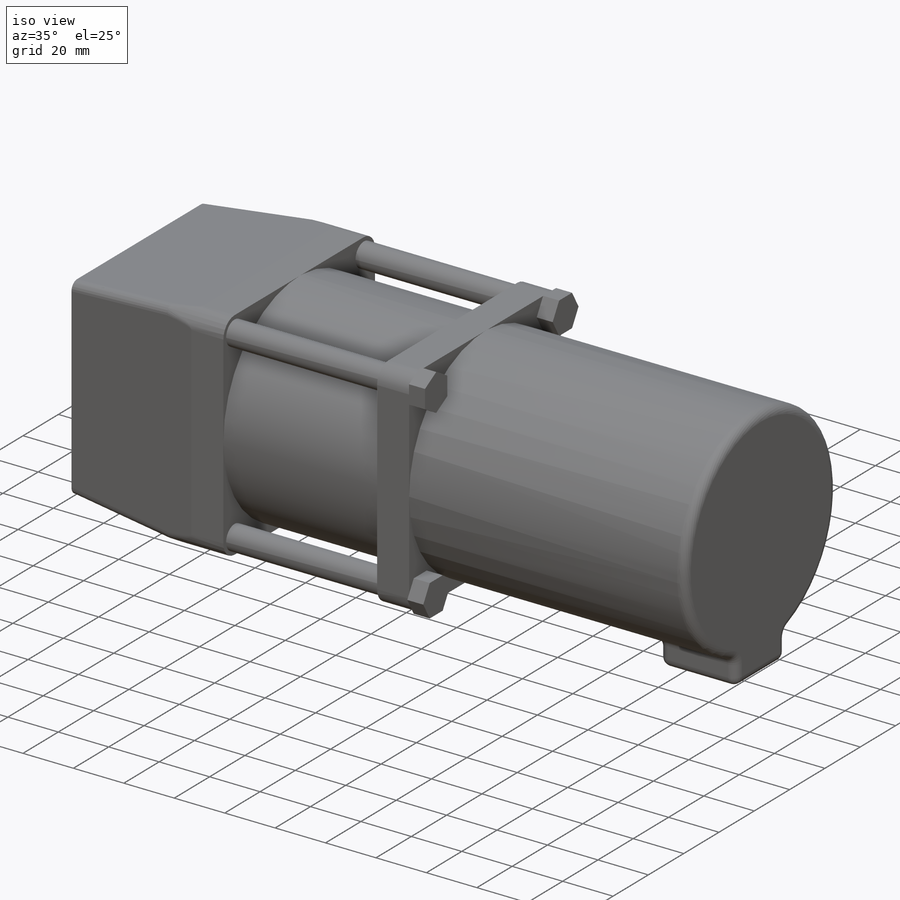
[diagram: iso view]
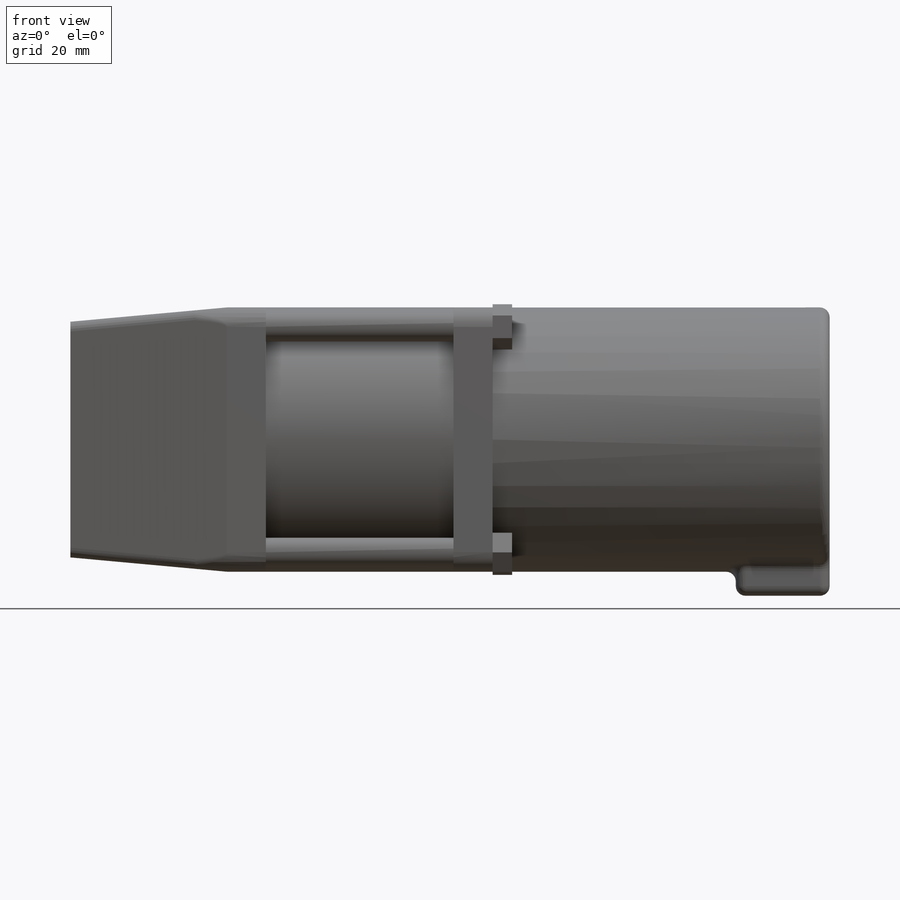
[diagram: front view]
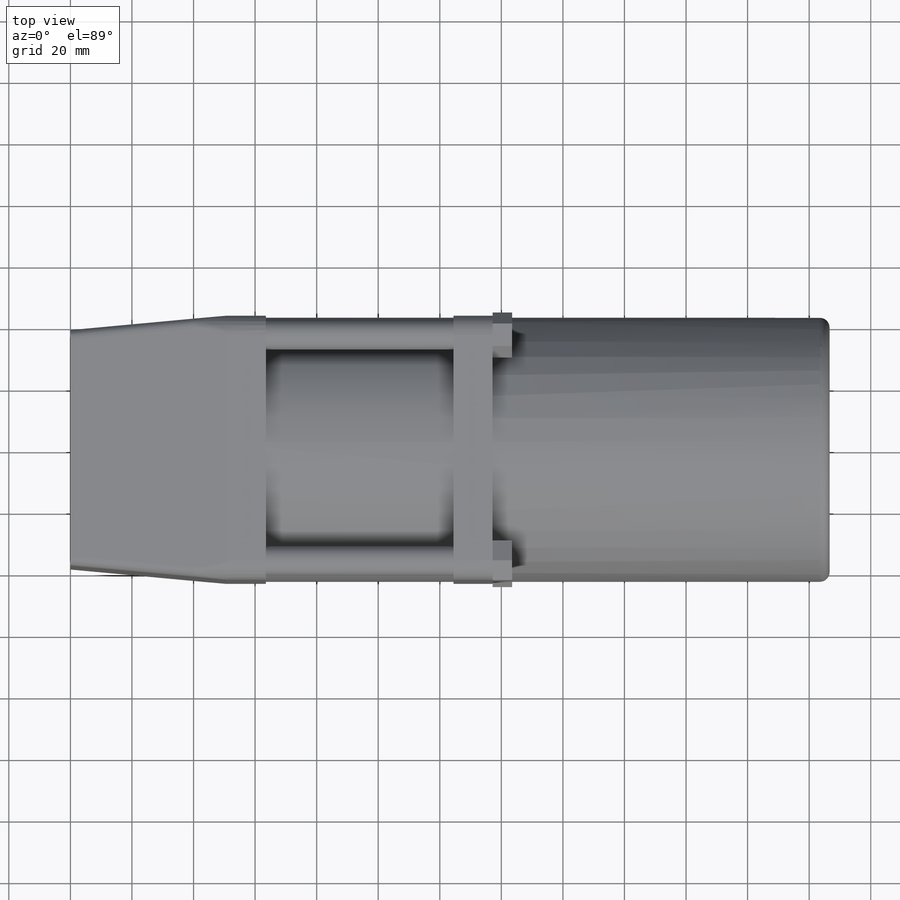
[diagram: top view]
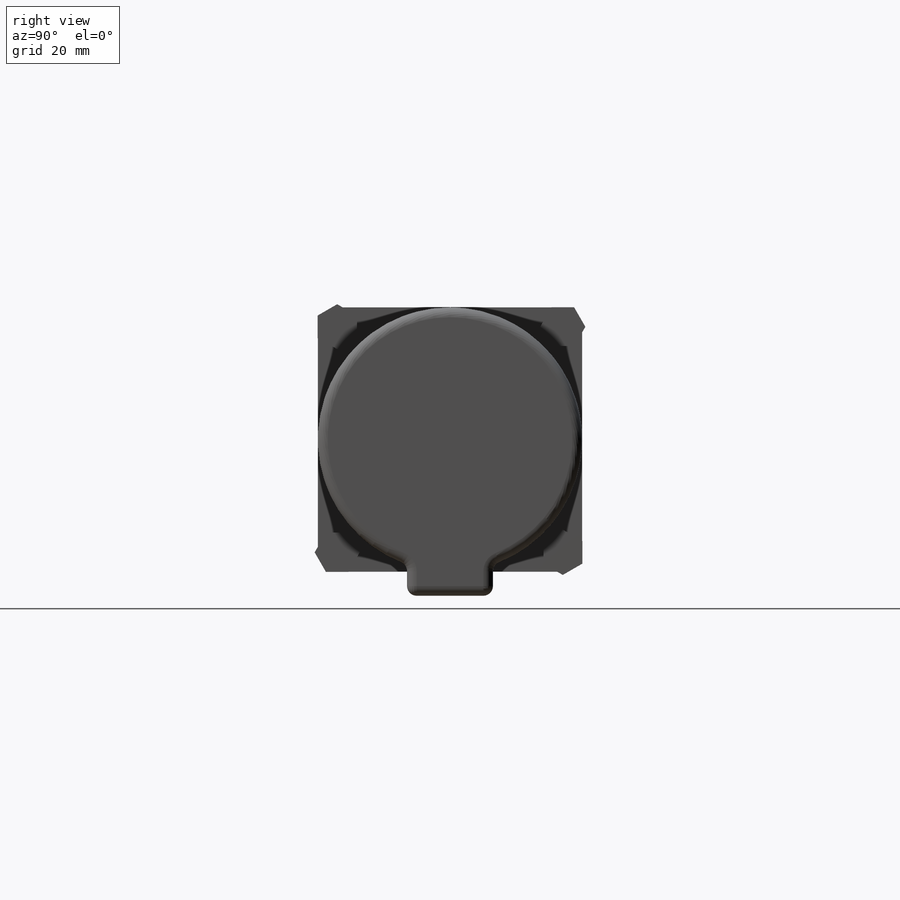
[diagram: right view]
SOLIDWORKS PART (.sldprt)
format: sldprt  version: not decoded by parser v0  size: 516,096 bytes
history: native  units: mm
features: sketch x8, extrude x6, fillet x5, plane x3, material x1, pattern_circular x1 (+16 scaffold rows collapsed)
feature tree (40):
  scaffold x16  (default folders/planes/origin — collapsed)
  material  "Material <not specified>"
  sketch  "Sketch1"  dims[D1=76.581mm D2=76.581mm]
  plane  "Plane1"  Offset=50.8mm
  sketch  "Sketch2"  dims[D1=85.852mm]
  plane  "D"  Offset=246.634mm
  sketch  "Sketch4"  dims[D1=0.0mm]
  extrude  "Boss-Extrude1"  Depth=12.7mm
  sketch  "Sketch5"
  extrude  "Boss-Extrude2"  [1 undecoded]
  plane  "Plane3"  Offset=60.96mm
  sketch  "Sketch6"
  extrude  "Boss-Extrude3"  Depth=12.7mm
  sketch  "Sketch7"  dims[D1=9.525mm]
  extrude  "Boss-Extrude4"  [1 undecoded]
  sketch  "Sketch8"  dims[D1=12.7mm]
  extrude  "Boss-Extrude5"  Depth=6.35mm
  pattern_circular  "CirPattern1"  Count=4 Angle=360deg
  sketch  "Sketch9"  dims[D1=27.94mm D2=10.16mm]
  extrude  "Boss-Extrude6"  Depth=30.48mm
  fillet  "Fillet1"  Radius=6.35mm
  fillet  "Fillet2"  Radius=3.175mm
  fillet  "Fillet4"  Radius=3.175mm
  fillet  "Fillet5"  Radius=3.175mm
  fillet  "Fillet6"  Radius=3.175mm
decode coverage: 16 of 20 modeling features carry decoded parameters
note: 2 parameter values undecoded
note: suppression state not decoded; provenance and decode notes live in map.json
